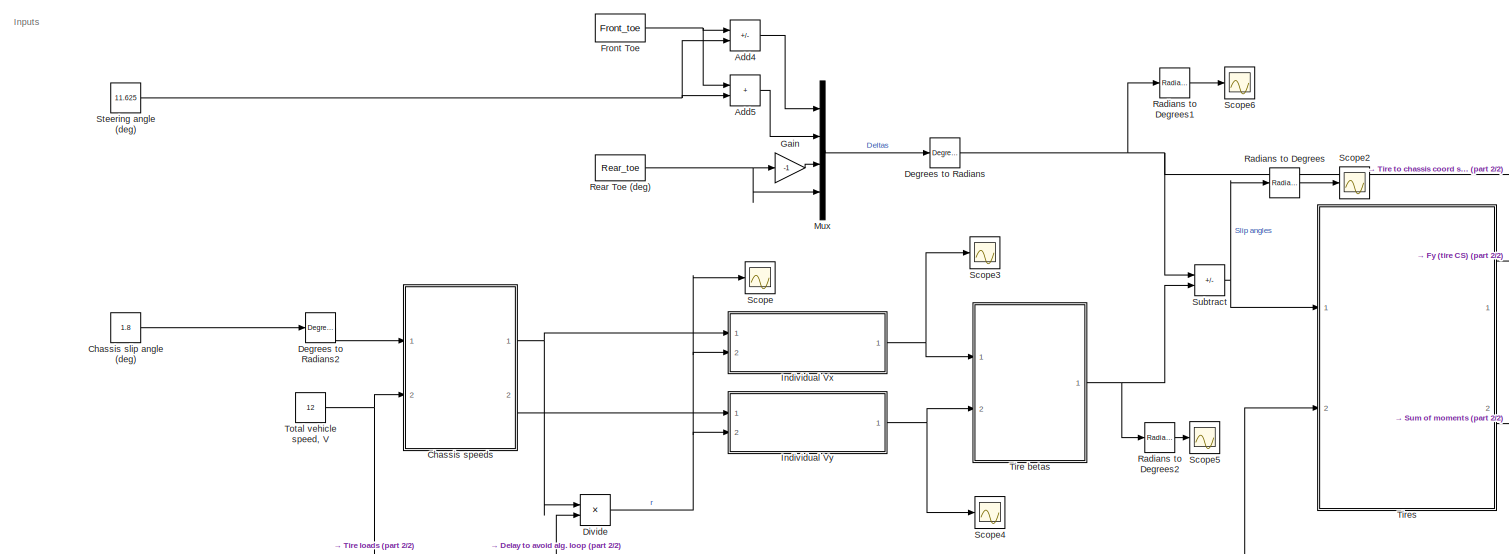
[diagram: root canvas - part 1/2, left side, full height]
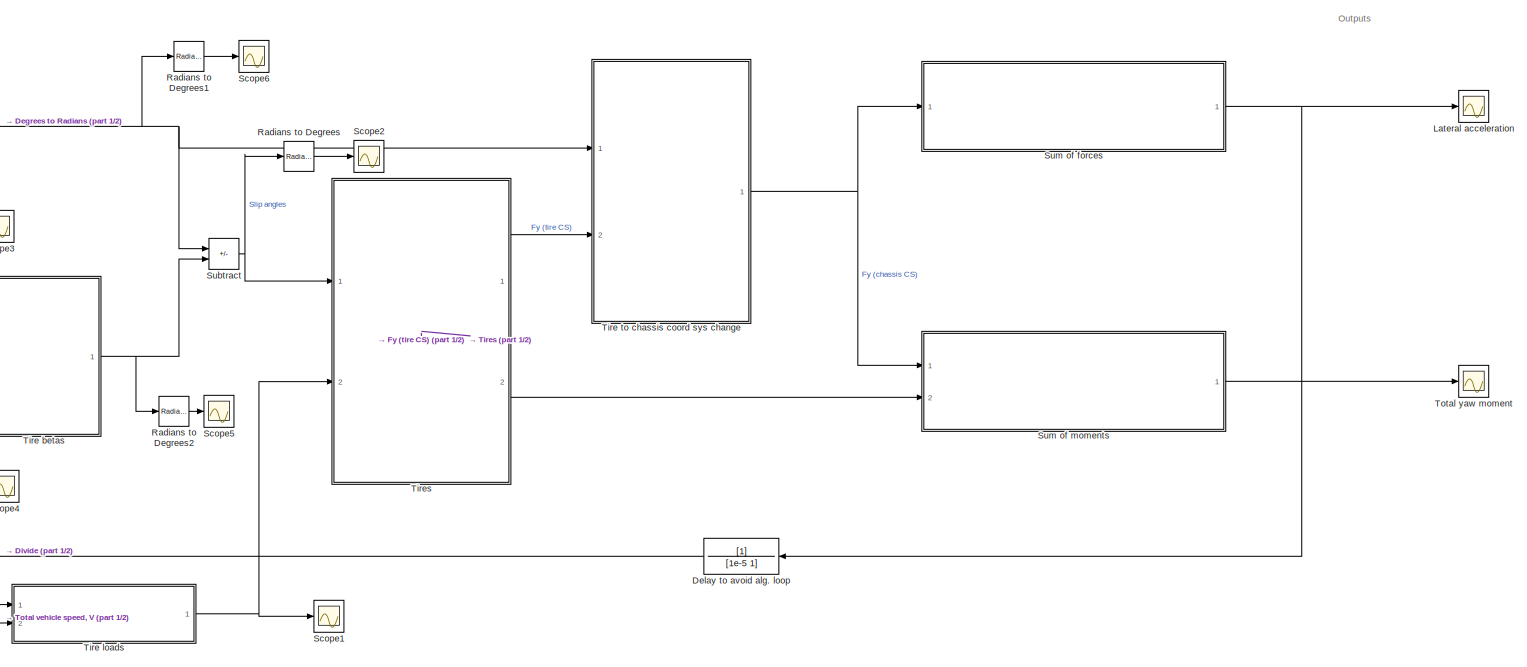
[diagram: root canvas - part 2/2, right side, full height]
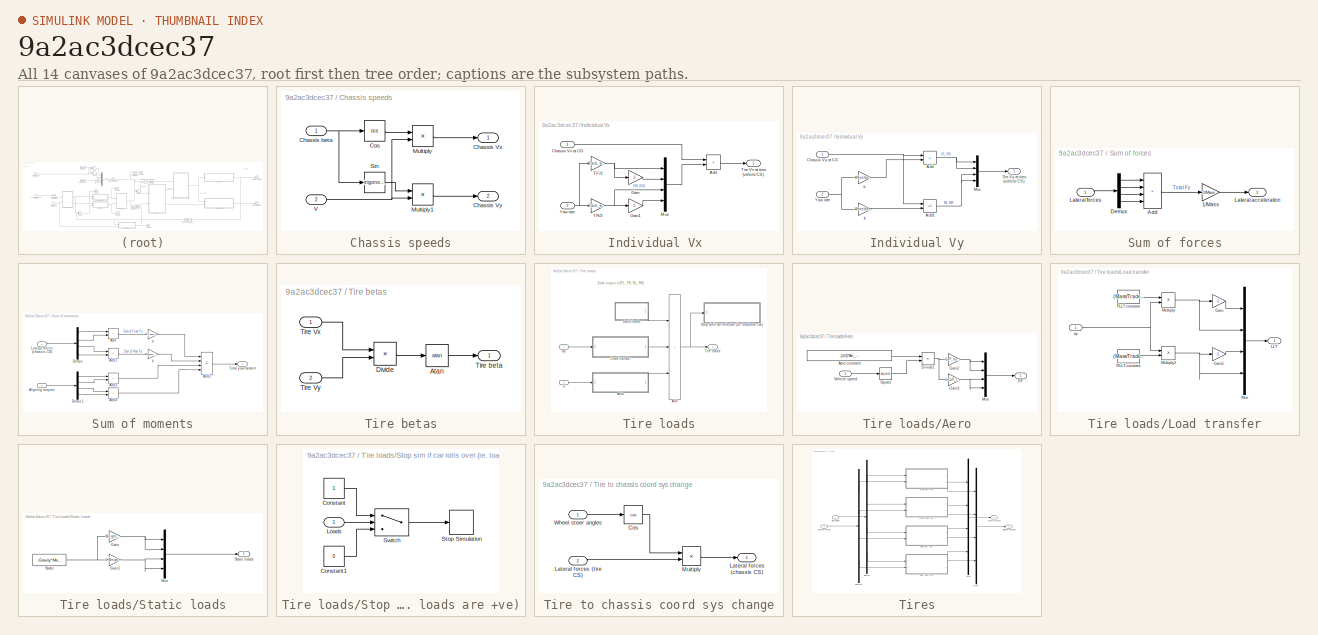
[diagram: thumbnail index - all 14 canvases of the model, root first then tree order]
MODEL slx_9a2ac3dcec37
KIND model
CONFIG AbsTol = auto
CONFIG EnableMultiTasking = off
CONFIG FixedStep = auto
CONFIG InitFcn = mdl = 'vehicle_model';\nwks = get_param(mdl, 'ModelWorkspace');\n\n% ---- FRONT TIRES ----\n\n% Load data for front tires\nvals_struct_front = load('lateral_data_lut_FRONT.mat');\nload_y_front = vals_struct_front.load_y;\n\n% Set data for FR tire\nsa_x_FR = vals_struct_front.sa_x;\nlateral_coeff_FR = vals_struct_front.lat_coeff;\naligning_torque_FR = vals_struct_front.aligning_torque;\nparams_FR.s_sa_breakpoin...<+1563ch>
CONFIG MaxStep = 0.02
CONFIG MinStep = auto
CONFIG RelTol = 1e-3
CONFIG SampleTimeConstraint = Unconstrained
CONFIG SolverName = ode45
CONFIG StartTime = 0.0
CONFIG StopFcn = clear mdl wks vals_struct_front vals_struct_rear load_y_front load_y_rear\nclear sa_x_FL sa_x_FR sa_x_RL sa_x_RR\nclear lateral_coeff_FL lateral_coeff_FR lateral_coeff_RL lateral_coeff_RR\nclear aligning_torque_FL aligning_torque_FR aligning_torque_RL aligning_torque_RR\nclear params_FL params_FR params_RL params_RR\n
CONFIG StopTime = 0.1
WORKSPACE source: mxarray member
WORKSPACE Air_density = 1.225
WORKSPACE CG_height = 0.272
WORKSPACE CG_to_roll = 0.272
WORKSPACE CL = 0.1
WORKSPACE CoP_front_dist = 0.5
WORKSPACE FRCH = 0.1066
WORKSPACE Front_roll_rate = 871.09
WORKSPACE Front_toe = 0
WORKSPACE Frontal_area = 1
WORKSPACE Gravity = 9.81
WORKSPACE Mass = 280.5
WORKSPACE RRCH = 0.1088
WORKSPACE Rear_roll_rate = 972.85
WORKSPACE Rear_toe = 0
WORKSPACE Track_width_front = 1.2
WORKSPACE Track_width_rear = 1.2
WORKSPACE Weight_dist_front = 0.5
WORKSPACE Wheelbase = 1.727
WORKSPACE params_FL: object (value not decoded)
WORKSPACE params_FR: object (value not decoded)
WORKSPACE params_RL: object (value not decoded)
WORKSPACE params_RR: object (value not decoded)
BLOCK [Sum] Add4
  IconShape = rectangular
  Inputs = -+
  Ports = [2, 1]
BLOCK [Sum] Add5
  IconShape = rectangular
  Ports = [2, 1]
BLOCK [Constant] Chassis slip angle (deg)
  Value = 1.8
BLOCK [SubSystem] Chassis speeds
  Ports = [2, 2]
  RequestExecContextInheritance = off
BLOCK [Outport] Chassis speeds/Chassis Vx
BLOCK [Outport] Chassis speeds/Chassis Vy
  Port = 2
BLOCK [Inport] Chassis speeds/Chassis beta
BLOCK [Trigonometry] Chassis speeds/Cos
  Operator = cos
  Ports = [1, 1]
BLOCK [Product] Chassis speeds/Multiply
  Inputs = **
  Ports = [2, 1]
BLOCK [Product] Chassis speeds/Multiply1
  Inputs = **
  Ports = [2, 1]
BLOCK [Trigonometry] Chassis speeds/Sin
  Ports = [1, 1]
BLOCK [Inport] Chassis speeds/V
  Port = 2
BLOCK [Reference] Degrees to Radians  REF=simulink_extras/Transformations/Degrees to
Radians
  Ports = [1, 1]
  SourceBlock = simulink_extras/Transformations/Degrees to\nRadians
  SourceProductBaseCode = SL
  SourceType = DegreesToRadians
BLOCK [Reference] Degrees to Radians2  REF=simulink_extras/Transformations/Degrees to
Radians
  Ports = [1, 1]
  SourceBlock = simulink_extras/Transformations/Degrees to\nRadians
  SourceProductBaseCode = SL
  SourceType = DegreesToRadians
BLOCK [TransferFcn] Delay to avoid alg. loop
  Denominator = [1e-5 1]
BLOCK [Product] Divide
  Inputs = /*
  Ports = [2, 1]
BLOCK [Constant] Front Toe
  Value = Front_toe
BLOCK [Gain] Gain
  Gain = -1
BLOCK [SubSystem] Individual Vx 
  Ports = [2, 1]
  RequestExecContextInheritance = off
BLOCK [Sum] Individual Vx /Add
  IconShape = rectangular
  Ports = [2, 1]
BLOCK [Inport] Individual Vx /Chassis Vx at CG
BLOCK [Gain] Individual Vx /Gain
  Gain = -1
BLOCK [Gain] Individual Vx /Gain1
  Gain = -1
BLOCK [Mux] Individual Vx /Mux
  DisplayOption = bar
  Ports = [4, 1]
BLOCK [Gain] Individual Vx /TF//2
  Gain = Track_width_front/2
BLOCK [Gain] Individual Vx /TR//2
  Gain = Track_width_rear/2
BLOCK [Outport] Individual Vx /Tire Vx at tires (vehicle CS)
BLOCK [Inport] Individual Vx /Yaw rate
  Port = 2
BLOCK [SubSystem] Individual Vy
  Ports = [2, 1]
  RequestExecContextInheritance = off
BLOCK [Sum] Individual Vy/Add
  IconShape = rectangular
  Ports = [2, 1]
BLOCK [Sum] Individual Vy/Add1
  IconShape = rectangular
  Inputs = +-
  Ports = [2, 1]
BLOCK [Inport] Individual Vy/Chassis Vy at CG
BLOCK [Mux] Individual Vy/Mux
  DisplayOption = bar
  Ports = [4, 1]
BLOCK [Outport] Individual Vy/Tire Vy at tires (vehicle CS)
BLOCK [Inport] Individual Vy/Yaw rate
  Port = 2
BLOCK [Gain] Individual Vy/a
  Gain = Wheelbase*(1-Weight_dist_front)
BLOCK [Gain] Individual Vy/b
  Gain = Wheelbase*Weight_dist_front
BLOCK [Scope] Lateral acceleration
  Floating = off
  NumInputPorts = 1
  Ports = [1]
  ScopeSpecificationString = Simulink.scopes.TimeScopeBlockCfg('CurrentConfiguration', extmgr.ConfigurationSet(extmgr.Configuration('Core','General UI',true),extmgr.Configuration('Core','Source UI',true),extmgr.Configuration('Sources','WiredSimulink',true),extmgr.Configuration('Visuals','Time Domain',true,'SerializedDisplays',{struct('MinYLimReal','-15.06341','MaxYLimReal','-2.97025','YLabelReal','','MinYLimMag','0.00000','Ma...<+1413ch>
BLOCK [Mux] Mux
  DisplayOption = bar
  Ports = [4, 1]
BLOCK [Reference] Radians to Degrees  REF=simulink_extras/Transformations/Radians
to Degrees
  Ports = [1, 1]
  SourceBlock = simulink_extras/Transformations/Radians\nto Degrees
  SourceProductBaseCode = SL
  SourceType = RadiansToDegrees
BLOCK [Reference] Radians to Degrees1  REF=simulink_extras/Transformations/Radians
to Degrees
  Ports = [1, 1]
  SourceBlock = simulink_extras/Transformations/Radians\nto Degrees
  SourceProductBaseCode = SL
  SourceType = RadiansToDegrees
BLOCK [Reference] Radians to Degrees2  REF=simulink_extras/Transformations/Radians
to Degrees
  Ports = [1, 1]
  SourceBlock = simulink_extras/Transformations/Radians\nto Degrees
  SourceProductBaseCode = SL
  SourceType = RadiansToDegrees
BLOCK [Constant] Rear Toe (deg)
  Value = Rear_toe
BLOCK [Scope] Scope
  Floating = off
  NumInputPorts = 1
  Ports = [1]
  ScopeSpecificationString = Simulink.scopes.TimeScopeBlockCfg('CurrentConfiguration', extmgr.ConfigurationSet(extmgr.Configuration('Core','General UI',true),extmgr.Configuration('Core','Source UI',true),extmgr.Configuration('Sources','WiredSimulink',true,'DataLoggingVariableName','ScopeData1'),extmgr.Configuration('Visuals','Time Domain',true,'SerializedDisplays',{struct('MinYLimReal','-0.14663','MaxYLimReal','1.31964','YLab...<+1424ch>
BLOCK [Scope] Scope1
  Floating = off
  NumInputPorts = 1
  Ports = [1]
  ScopeSpecificationString = Simulink.scopes.TimeScopeBlockCfg('CurrentConfiguration', extmgr.ConfigurationSet(extmgr.Configuration('Core','General UI',true),extmgr.Configuration('Core','Source UI',true),extmgr.Configuration('Sources','WiredSimulink',true,'DataLoggingVariableName','ScopeData1'),extmgr.Configuration('Visuals','Time Domain',true,'SerializedDisplays',{struct('MinYLimReal','-1541.58924','MaxYLimReal','161.32674',...<+1510ch>
BLOCK [Scope] Scope2
  Floating = off
  NumInputPorts = 1
  Ports = [1]
  ScopeSpecificationString = Simulink.scopes.TimeScopeBlockCfg('CurrentConfiguration', extmgr.ConfigurationSet(extmgr.Configuration('Core','General UI',true),extmgr.Configuration('Core','Source UI',true),extmgr.Configuration('Sources','WiredSimulink',true,'DataLoggingVariableName','ScopeData1'),extmgr.Configuration('Visuals','Time Domain',true,'SerializedDisplays',{struct('MinYLimReal','-2.17891','MaxYLimReal','1.17891','YLab...<+1475ch>
BLOCK [Scope] Scope3
  Floating = off
  NumInputPorts = 1
  Ports = [1]
  ScopeSpecificationString = Simulink.scopes.TimeScopeBlockCfg('CurrentConfiguration', extmgr.ConfigurationSet(extmgr.Configuration('Core','General UI',true),extmgr.Configuration('Core','Source UI',true),extmgr.Configuration('Sources','WiredSimulink',true,'DataLoggingVariableName','ScopeData1'),extmgr.Configuration('Visuals','Time Domain',true,'SerializedDisplays',{struct('MinYLimReal','11.68423','MaxYLimReal','12.22444','YLa...<+1438ch>
BLOCK [Scope] Scope4
  Floating = off
  NumInputPorts = 1
  Ports = [1]
  ScopeSpecificationString = Simulink.scopes.TimeScopeBlockCfg('CurrentConfiguration', extmgr.ConfigurationSet(extmgr.Configuration('Core','General UI',true),extmgr.Configuration('Core','Source UI',true),extmgr.Configuration('Sources','WiredSimulink',true,'DataLoggingVariableName','ScopeData2'),extmgr.Configuration('Visuals','Time Domain',true,'SerializedDisplays',{struct('MinYLimReal','-0.31362','MaxYLimReal','0.31362','YLab...<+1428ch>
BLOCK [Scope] Scope5
  Floating = off
  NumInputPorts = 1
  Ports = [1]
  ScopeSpecificationString = Simulink.scopes.TimeScopeBlockCfg('CurrentConfiguration', extmgr.ConfigurationSet(extmgr.Configuration('Core','General UI',true),extmgr.Configuration('Core','Source UI',true),extmgr.Configuration('Sources','WiredSimulink',true,'DataLoggingVariableName','ScopeData3'),extmgr.Configuration('Visuals','Time Domain',true,'SerializedDisplays',{struct('MinYLimReal','-2.30391','MaxYLimReal','2.30391','YLab...<+1482ch>
BLOCK [Scope] Scope6
  Floating = off
  NumInputPorts = 1
  Ports = [1]
  ScopeSpecificationString = Simulink.scopes.TimeScopeBlockCfg('CurrentConfiguration', extmgr.ConfigurationSet(extmgr.Configuration('Core','General UI',true),extmgr.Configuration('Core','Source UI',true),extmgr.Configuration('Sources','WiredSimulink',true,'DataLoggingVariableName','ScopeData4'),extmgr.Configuration('Visuals','Time Domain',true,'SerializedDisplays',{struct('MinYLimReal','-0.125','MaxYLimReal','1.125','YLabelRe...<+1648ch>
BLOCK [Constant] Steering angle (deg)
  Value = 11.625
BLOCK [Sum] Subtract
  IconShape = rectangular
  Inputs = -+
  Ports = [2, 1]
BLOCK [SubSystem] Sum of forces
  Ports = [1, 1]
  RequestExecContextInheritance = off
BLOCK [Gain] Sum of forces/1//Mass
  Gain = 1/Mass
BLOCK [Sum] Sum of forces/Add
  IconShape = rectangular
  Inputs = ++++
  Ports = [4, 1]
BLOCK [Demux] Sum of forces/Demux
  Ports = [1, 4]
BLOCK [Outport] Sum of forces/Lateral acceleration
BLOCK [Inport] Sum of forces/Lateral forces
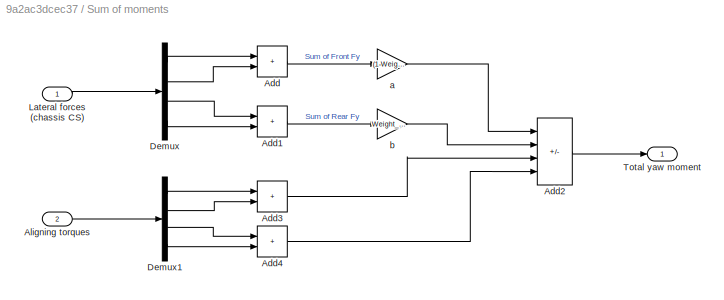
BLOCK [SubSystem] Sum of moments
  Ports = [2, 1]
  RequestExecContextInheritance = off
BLOCK [Sum] Sum of moments/Add
  IconShape = rectangular
  Ports = [2, 1]
BLOCK [Sum] Sum of moments/Add1
  IconShape = rectangular
  Ports = [2, 1]
BLOCK [Sum] Sum of moments/Add2
  IconShape = rectangular
  Inputs = +-++
  Ports = [4, 1]
BLOCK [Sum] Sum of moments/Add3
  IconShape = rectangular
  Ports = [2, 1]
BLOCK [Sum] Sum of moments/Add4
  IconShape = rectangular
  Ports = [2, 1]
BLOCK [Inport] Sum of moments/Aligning torques
  Port = 2
BLOCK [Demux] Sum of moments/Demux
  Ports = [1, 4]
BLOCK [Demux] Sum of moments/Demux1
  Ports = [1, 4]
BLOCK [Inport] Sum of moments/Lateral forces (chassis CS)
BLOCK [Outport] Sum of moments/Total yaw moment
BLOCK [Gain] Sum of moments/a
  Gain = (1-Weight_dist_front)*Wheelbase
BLOCK [Gain] Sum of moments/b
  Gain = Weight_dist_front*Wheelbase
BLOCK [SubSystem] Tire betas
  Ports = [2, 1]
  RequestExecContextInheritance = off
BLOCK [Trigonometry] Tire betas/Atan
  Operator = atan
  Ports = [1, 1]
BLOCK [Product] Tire betas/Divide
  Inputs = /*
  Ports = [2, 1]
BLOCK [Inport] Tire betas/Tire Vx
BLOCK [Inport] Tire betas/Tire Vy
  Port = 2
BLOCK [Outport] Tire betas/Tire beta
BLOCK [SubSystem] Tire loads
  Ports = [2, 1]
  RequestExecContextInheritance = off
BLOCK [Sum] Tire loads/Add
  IconShape = rectangular
  Inputs = +++
  Ports = [3, 1]
BLOCK [SubSystem] Tire loads/Aero
  Ports = [1, 1]
  RequestExecContextInheritance = off
BLOCK [Constant] Tire loads/Aero/Aero constant
  Value = -(1/2)*Air_density*CL*Frontal_area/2
BLOCK [Outport] Tire loads/Aero/DF
BLOCK [Product] Tire loads/Aero/Divide1
  Inputs = **
  Ports = [2, 1]
BLOCK [Gain] Tire loads/Aero/Gain2
  Gain = CoP_front_dist
BLOCK [Gain] Tire loads/Aero/Gain3
  Gain = 1-CoP_front_dist
BLOCK [Mux] Tire loads/Aero/Mux
  DisplayOption = bar
  Ports = [4, 1]
BLOCK [Math] Tire loads/Aero/Square
  Operator = square
  Ports = [1, 1]
BLOCK [Inport] Tire loads/Aero/Vehicle speed
BLOCK [SubSystem] Tire loads/Load transfer
  Ports = [1, 1]
  RequestExecContextInheritance = off
BLOCK [Constant] Tire loads/Load transfer/FLLT constant
  Value = (Mass/Track_width_front)*((CG_to_roll*Front_roll_rate/(Front_roll_rate+Rear_roll_rate))+(Weight_dist_front*(FRCH)))
BLOCK [Gain] Tire loads/Load transfer/Gain
  Gain = -1
BLOCK [Gain] Tire loads/Load transfer/Gain1
  Gain = -1
BLOCK [Outport] Tire loads/Load transfer/LLT
BLOCK [Product] Tire loads/Load transfer/Multiply
  Inputs = **
  Ports = [2, 1]
BLOCK [Product] Tire loads/Load transfer/Multiply2
  Inputs = **
  Ports = [2, 1]
BLOCK [Mux] Tire loads/Load transfer/Mux
  DisplayOption = bar
  Ports = [4, 1]
BLOCK [Constant] Tire loads/Load transfer/RLLT constant
  Value = (Mass/Track_width_rear)*((CG_to_roll*Rear_roll_rate/(Front_roll_rate+Rear_roll_rate))+((1-Weight_dist_front)*RRCH))
BLOCK [Inport] Tire loads/Load transfer/ay
BLOCK [SubSystem] Tire loads/Static loads
  Ports = [0, 1]
  RequestExecContextInheritance = off
BLOCK [Gain] Tire loads/Static loads/Gain
  Gain = Weight_dist_front
BLOCK [Gain] Tire loads/Static loads/Gain1
  Gain = 1-Weight_dist_front
BLOCK [Mux] Tire loads/Static loads/Mux
  DisplayOption = bar
  Ports = [4, 1]
BLOCK [Constant] Tire loads/Static loads/Static
  Value = -Gravity*Mass/2
BLOCK [Outport] Tire loads/Static loads/Static loads
BLOCK [SubSystem] Tire loads/Stop sim if car rolls over (ie. loads are +ve)
  Ports = [1]
  RequestExecContextInheritance = off
BLOCK [Constant] Tire loads/Stop sim if car rolls over (ie. loads are +ve)/Constant
BLOCK [Constant] Tire loads/Stop sim if car rolls over (ie. loads are +ve)/Constant1
  Value = 0
BLOCK [Inport] Tire loads/Stop sim if car rolls over (ie. loads are +ve)/Loads
BLOCK [Stop] Tire loads/Stop sim if car rolls over (ie. loads are +ve)/Stop Simulation
BLOCK [Switch] Tire loads/Stop sim if car rolls over (ie. loads are +ve)/Switch
  Criteria = u2 > Threshold
  InputSameDT = off
  SaturateOnIntegerOverflow = off
BLOCK [Outport] Tire loads/Tire loads
BLOCK [Inport] Tire loads/V
  Port = 2
BLOCK [Inport] Tire loads/ay
BLOCK [SubSystem] Tire to chassis coord sys change
  Ports = [2, 1]
  RequestExecContextInheritance = off
BLOCK [Trigonometry] Tire to chassis coord sys change/Cos
  Operator = cos
  Ports = [1, 1]
BLOCK [Outport] Tire to chassis coord sys change/Lateral forces (chassis CS)
BLOCK [Inport] Tire to chassis coord sys change/Lateral forces (tire CS)
  Port = 2
BLOCK [Product] Tire to chassis coord sys change/Multiply
  Inputs = **
  Ports = [2, 1]
BLOCK [Inport] Tire to chassis coord sys change/Wheel steer angles
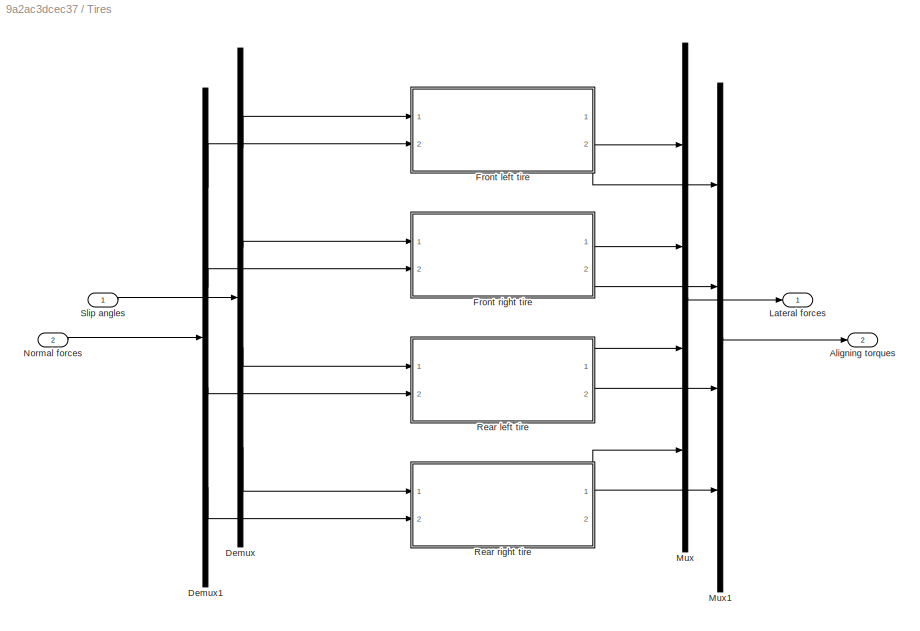
BLOCK [SubSystem] Tires
  Ports = [2, 2]
  RequestExecContextInheritance = off
BLOCK [Outport] Tires/Aligning torques
  Port = 2
BLOCK [Demux] Tires/Demux
  Ports = [1, 4]
BLOCK [Demux] Tires/Demux1
  Ports = [1, 4]
BLOCK [ModelReference] Tires/Front left tire
  ModelNameDialog = tire.slx
  ModelReferenceVersion = 2.1
  Ports = [2, 2]
  UsingDefaultArgumentValue = 0
BLOCK [ModelReference] Tires/Front right tire
  ModelNameDialog = tire.slx
  ModelReferenceVersion = 2.1
  Ports = [2, 2]
  UsingDefaultArgumentValue = 0
BLOCK [Outport] Tires/Lateral forces
BLOCK [Mux] Tires/Mux
  DisplayOption = bar
  Ports = [4, 1]
BLOCK [Mux] Tires/Mux1
  DisplayOption = bar
  Ports = [4, 1]
BLOCK [Inport] Tires/Normal forces
  Port = 2
BLOCK [ModelReference] Tires/Rear left tire
  ModelNameDialog = tire.slx
  ModelReferenceVersion = 2.1
  Ports = [2, 2]
  UsingDefaultArgumentValue = 0
BLOCK [ModelReference] Tires/Rear right tire
  ModelNameDialog = tire.slx
  ModelReferenceVersion = 2.1
  Ports = [2, 2]
  UsingDefaultArgumentValue = 0
BLOCK [Inport] Tires/Slip angles
BLOCK [Constant] Total vehicle speed, V
  Value = 12
BLOCK [Scope] Total yaw moment
  Floating = off
  NumInputPorts = 1
  Ports = [1]
  ScopeSpecificationString = Simulink.scopes.TimeScopeBlockCfg('CurrentConfiguration', extmgr.ConfigurationSet(extmgr.Configuration('Core','General UI',true),extmgr.Configuration('Core','Source UI',true),extmgr.Configuration('Sources','WiredSimulink',true,'DataLoggingVariableName','ScopeData1'),extmgr.Configuration('Visuals','Time Domain',true,'SerializedDisplays',{struct('MinYLimReal','-211.65066','MaxYLimReal','-85.10957','...<+1387ch>
ANNOTATION (root): Inputs
ANNOTATION (root): Outputs
ANNOTATION Tire loads: Each output is [FL, FR, RL, RR]
LINE Add4:1 -> Mux:1
LINE Add5:1 -> Mux:2
LINE Chassis slip angle (deg):1 -> Degrees to Radians2:1
NET Chassis speeds/Chassis beta:1 -> Chassis speeds/Cos:1, Chassis speeds/Sin:1
LINE Chassis speeds/Cos:1 -> Chassis speeds/Multiply:1
LINE Chassis speeds/Multiply1:1 -> Chassis speeds/Chassis Vy:1
LINE Chassis speeds/Multiply:1 -> Chassis speeds/Chassis Vx:1
LINE Chassis speeds/Sin:1 -> Chassis speeds/Multiply1:1
NET Chassis speeds/V:1 -> Chassis speeds/Multiply1:2, Chassis speeds/Multiply:2
NET Chassis speeds:1 -> Divide:1, Individual Vx :1
LINE Chassis speeds:2 -> Individual Vy:1
LINE Degrees to Radians2:1 -> Chassis speeds:1
NET Degrees to Radians:1 -> Radians to Degrees1:1, Subtract:1, Tire to chassis coord sys change:1
NET Delay to avoid alg. loop:1 -> Divide:2, Tire loads:1
NET Divide:1 -> Individual Vx :2, Individual Vy:2, Scope:1
NET Front Toe:1 -> Add4:1, Add5:1
LINE Gain:1 -> Mux:3
LINE Individual Vx /Add:1 -> Individual Vx /Tire Vx at tires (vehicle CS):1
LINE Individual Vx /Chassis Vx at CG:1 -> Individual Vx /Add:1
LINE Individual Vx /Gain1:1 -> Individual Vx /Mux:4
LINE Individual Vx /Gain:1 -> Individual Vx /Mux:2
LINE Individual Vx /Mux:1 -> Individual Vx /Add:2
NET Individual Vx /TF//2:1 -> Individual Vx /Gain:1, Individual Vx /Mux:1
NET Individual Vx /TR//2:1 -> Individual Vx /Gain1:1, Individual Vx /Mux:3
NET Individual Vx /Yaw rate:1 -> Individual Vx /TF//2:1, Individual Vx /TR//2:1
NET Individual Vx :1 -> Scope3:1, Tire betas:1
NET Individual Vy/Add1:1 -> Individual Vy/Mux:3, Individual Vy/Mux:4
NET Individual Vy/Add:1 -> Individual Vy/Mux:1, Individual Vy/Mux:2
NET Individual Vy/Chassis Vy at CG:1 -> Individual Vy/Add1:1, Individual Vy/Add:1
LINE Individual Vy/Mux:1 -> Individual Vy/Tire Vy at tires (vehicle CS):1
NET Individual Vy/Yaw rate:1 -> Individual Vy/a:1, Individual Vy/b:1
LINE Individual Vy/a:1 -> Individual Vy/Add:2
LINE Individual Vy/b:1 -> Individual Vy/Add1:2
NET Individual Vy:1 -> Scope4:1, Tire betas:2
LINE Mux:1 -> Degrees to Radians:1
LINE Radians to Degrees1:1 -> Scope6:1
LINE Radians to Degrees2:1 -> Scope5:1
LINE Radians to Degrees:1 -> Scope2:1
NET Rear Toe (deg):1 -> Gain:1, Mux:4
NET Steering angle (deg):1 -> Add4:2, Add5:2
NET Subtract:1 -> Radians to Degrees:1, Tires:1
LINE Sum of forces/1//Mass:1 -> Sum of forces/Lateral acceleration:1
LINE Sum of forces/Add:1 -> Sum of forces/1//Mass:1
LINE Sum of forces/Demux:1 -> Sum of forces/Add:1
LINE Sum of forces/Demux:2 -> Sum of forces/Add:2
LINE Sum of forces/Demux:3 -> Sum of forces/Add:3
LINE Sum of forces/Demux:4 -> Sum of forces/Add:4
LINE Sum of forces/Lateral forces:1 -> Sum of forces/Demux:1
NET Sum of forces:1 -> Delay to avoid alg. loop:1, Lateral acceleration:1
LINE Sum of moments/Add1:1 -> Sum of moments/b:1
LINE Sum of moments/Add2:1 -> Sum of moments/Total yaw moment:1
LINE Sum of moments/Add3:1 -> Sum of moments/Add2:3
LINE Sum of moments/Add4:1 -> Sum of moments/Add2:4
LINE Sum of moments/Add:1 -> Sum of moments/a:1
LINE Sum of moments/Aligning torques:1 -> Sum of moments/Demux1:1
LINE Sum of moments/Demux1:1 -> Sum of moments/Add3:1
LINE Sum of moments/Demux1:2 -> Sum of moments/Add3:2
LINE Sum of moments/Demux1:3 -> Sum of moments/Add4:1
LINE Sum of moments/Demux1:4 -> Sum of moments/Add4:2
LINE Sum of moments/Demux:1 -> Sum of moments/Add:1
LINE Sum of moments/Demux:2 -> Sum of moments/Add:2
LINE Sum of moments/Demux:3 -> Sum of moments/Add1:1
LINE Sum of moments/Demux:4 -> Sum of moments/Add1:2
LINE Sum of moments/Lateral forces (chassis CS):1 -> Sum of moments/Demux:1
LINE Sum of moments/a:1 -> Sum of moments/Add2:1
LINE Sum of moments/b:1 -> Sum of moments/Add2:2
LINE Sum of moments:1 -> Total yaw moment:1
LINE Tire betas/Atan:1 -> Tire betas/Tire beta:1
LINE Tire betas/Divide:1 -> Tire betas/Atan:1
LINE Tire betas/Tire Vx:1 -> Tire betas/Divide:1
LINE Tire betas/Tire Vy:1 -> Tire betas/Divide:2
NET Tire betas:1 -> Radians to Degrees2:1, Subtract:2
NET Tire loads/Add:1 -> Tire loads/Stop sim if car rolls over (ie. loads are +ve):1, Tire loads/Tire loads:1
LINE Tire loads/Aero/Aero constant:1 -> Tire loads/Aero/Divide1:1
NET Tire loads/Aero/Divide1:1 -> Tire loads/Aero/Gain2:1, Tire loads/Aero/Gain3:1
NET Tire loads/Aero/Gain2:1 -> Tire loads/Aero/Mux:1, Tire loads/Aero/Mux:2
NET Tire loads/Aero/Gain3:1 -> Tire loads/Aero/Mux:3, Tire loads/Aero/Mux:4
LINE Tire loads/Aero/Mux:1 -> Tire loads/Aero/DF:1
LINE Tire loads/Aero/Square:1 -> Tire loads/Aero/Divide1:2
LINE Tire loads/Aero/Vehicle speed:1 -> Tire loads/Aero/Square:1
LINE Tire loads/Aero:1 -> Tire loads/Add:3
LINE Tire loads/Load transfer/FLLT constant:1 -> Tire loads/Load transfer/Multiply:1
LINE Tire loads/Load transfer/Gain1:1 -> Tire loads/Load transfer/Mux:3
LINE Tire loads/Load transfer/Gain:1 -> Tire loads/Load transfer/Mux:1
NET Tire loads/Load transfer/Multiply2:1 -> Tire loads/Load transfer/Gain1:1, Tire loads/Load transfer/Mux:4
NET Tire loads/Load transfer/Multiply:1 -> Tire loads/Load transfer/Gain:1, Tire loads/Load transfer/Mux:2
LINE Tire loads/Load transfer/Mux:1 -> Tire loads/Load transfer/LLT:1
LINE Tire loads/Load transfer/RLLT constant:1 -> Tire loads/Load transfer/Multiply2:2
NET Tire loads/Load transfer/ay:1 -> Tire loads/Load transfer/Multiply2:1, Tire loads/Load transfer/Multiply:2
LINE Tire loads/Load transfer:1 -> Tire loads/Add:2
NET Tire loads/Static loads/Gain1:1 -> Tire loads/Static loads/Mux:3, Tire loads/Static loads/Mux:4
NET Tire loads/Static loads/Gain:1 -> Tire loads/Static loads/Mux:1, Tire loads/Static loads/Mux:2
LINE Tire loads/Static loads/Mux:1 -> Tire loads/Static loads/Static loads:1
NET Tire loads/Static loads/Static:1 -> Tire loads/Static loads/Gain1:1, Tire loads/Static loads/Gain:1
LINE Tire loads/Static loads:1 -> Tire loads/Add:1
LINE Tire loads/Stop sim if car rolls over (ie. loads are +ve)/Constant1:1 -> Tire loads/Stop sim if car rolls over (ie. loads are +ve)/Switch:3
LINE Tire loads/Stop sim if car rolls over (ie. loads are +ve)/Constant:1 -> Tire loads/Stop sim if car rolls over (ie. loads are +ve)/Switch:1
LINE Tire loads/Stop sim if car rolls over (ie. loads are +ve)/Loads:1 -> Tire loads/Stop sim if car rolls over (ie. loads are +ve)/Switch:2
LINE Tire loads/Stop sim if car rolls over (ie. loads are +ve)/Switch:1 -> Tire loads/Stop sim if car rolls over (ie. loads are +ve)/Stop Simulation:1
LINE Tire loads/V:1 -> Tire loads/Aero:1
LINE Tire loads/ay:1 -> Tire loads/Load transfer:1
NET Tire loads:1 -> Scope1:1, Tires:2
LINE Tire to chassis coord sys change/Cos:1 -> Tire to chassis coord sys change/Multiply:1
LINE Tire to chassis coord sys change/Lateral forces (tire CS):1 -> Tire to chassis coord sys change/Multiply:2
LINE Tire to chassis coord sys change/Multiply:1 -> Tire to chassis coord sys change/Lateral forces (chassis CS):1
LINE Tire to chassis coord sys change/Wheel steer angles:1 -> Tire to chassis coord sys change/Cos:1
NET Tire to chassis coord sys change:1 -> Sum of forces:1, Sum of moments:1
LINE Tires/Demux1:1 -> Tires/Front left tire:2
LINE Tires/Demux1:2 -> Tires/Front right tire:2
LINE Tires/Demux1:3 -> Tires/Rear left tire:2
LINE Tires/Demux1:4 -> Tires/Rear right tire:2
LINE Tires/Demux:1 -> Tires/Front left tire:1
LINE Tires/Demux:2 -> Tires/Front right tire:1
LINE Tires/Demux:3 -> Tires/Rear left tire:1
LINE Tires/Demux:4 -> Tires/Rear right tire:1
LINE Tires/Front left tire:1 -> Tires/Mux:1
LINE Tires/Front left tire:2 -> Tires/Mux1:1
LINE Tires/Front right tire:1 -> Tires/Mux:2
LINE Tires/Front right tire:2 -> Tires/Mux1:2
LINE Tires/Mux1:1 -> Tires/Aligning torques:1
LINE Tires/Mux:1 -> Tires/Lateral forces:1
LINE Tires/Normal forces:1 -> Tires/Demux1:1
LINE Tires/Rear left tire:1 -> Tires/Mux:3
LINE Tires/Rear left tire:2 -> Tires/Mux1:3
LINE Tires/Rear right tire:1 -> Tires/Mux:4
LINE Tires/Rear right tire:2 -> Tires/Mux1:4
LINE Tires/Slip angles:1 -> Tires/Demux:1
LINE Tires:1 -> Tire to chassis coord sys change:2
LINE Tires:2 -> Sum of moments:2
NET Total vehicle speed, V:1 -> Chassis speeds:2, Tire loads:2
note: NET lines group one-source signal fan-out (src -> all destinations, sorted); 1:1 wires keep LINE
